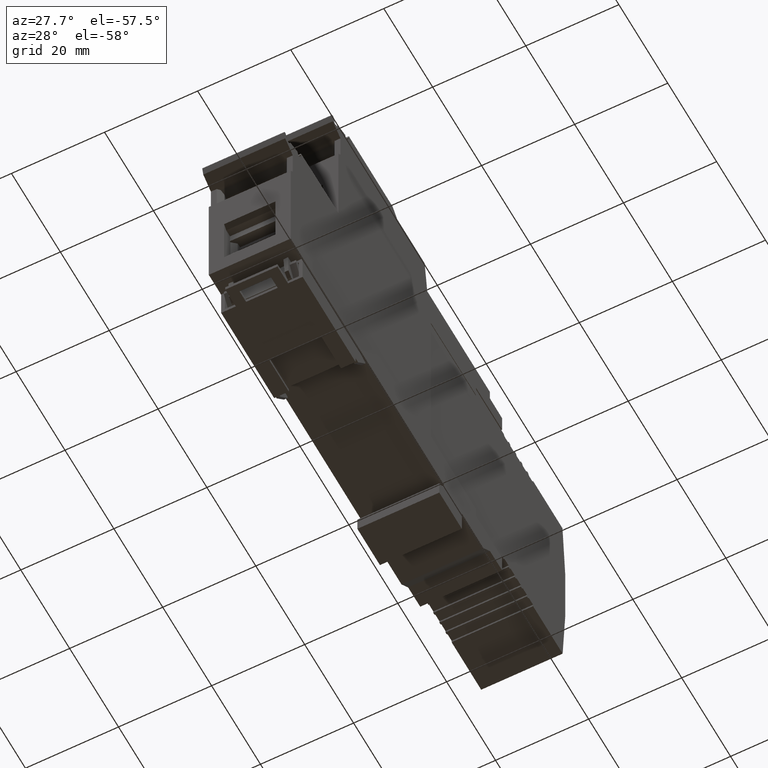
[diagram: clean part render]
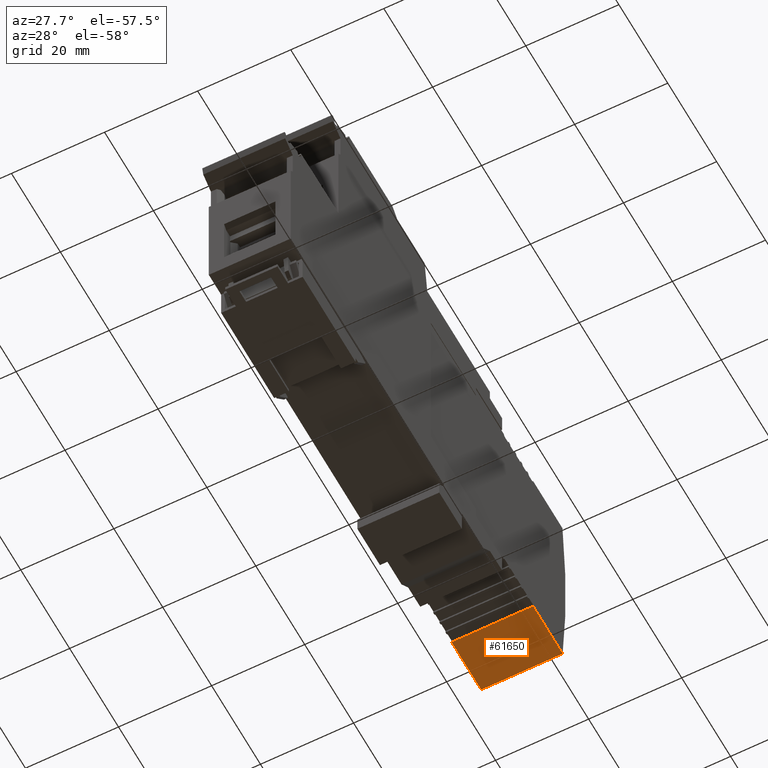
[diagram: same view with one face highlighted and labeled with its STEP entity id]
A machine part, auxiliary view. The second image highlights one B-rep face of the part: STEP entity #61650.
In plain terms, the highlighted planar face has unit normal (-0, -0, 1).
Its self-contained STEP definition (entity closure, byte-faithful):
#2360=CARTESIAN_POINT('',(21.7462375298771,102.799692134772,
17.5006430606323));
#2370=VERTEX_POINT('',#2360);
#2400=CARTESIAN_POINT('',(21.7462375298901,-0.0126563877429146,
17.5006430606323));
#2410=DIRECTION('',(-1.24299474238037E-13,1.,-8.72637840106173E-30));
#2420=VECTOR('',#2410,1.);
#2430=LINE('',#2400,#2420);
#2440=CARTESIAN_POINT('',(21.7462375298788,90.7023329973881,
17.5006430606323));
#2450=VERTEX_POINT('',#2440);
#2460=EDGE_CURVE('',#2450,#2370,#2430,.T.);
#60550=CARTESIAN_POINT('',(21.7462375298788,90.7023329973881,
54.199999999997));
#60560=DIRECTION('',(1.04216748445305E-15,8.59164801707105E-29,-1.));
#60570=VECTOR('',#60560,1.);
#60580=LINE('',#60550,#60570);
#60590=CARTESIAN_POINT('',(21.7462375298788,90.7023329973881,
0.000643060632540937));
#60600=VERTEX_POINT('',#60590);
#60610=EDGE_CURVE('',#2450,#60600,#60580,.T.);
#61420=CARTESIAN_POINT('',(21.7462375298773,102.743974331053,54.1));
#61430=DIRECTION('',(-1.,-1.24299474238037E-13,-1.04216748445305E-15));
#61440=DIRECTION('',(-1.24299474238037E-13,1.,-4.35667850212607E-29));
#61450=AXIS2_PLACEMENT_3D('',#61420,#61430,#61440);
#61460=PLANE('',#61450);
#61470=CARTESIAN_POINT('',(21.7462375298772,102.799692134772,
0.700000000000024));
#61480=DIRECTION('',(-5.52308764794106E-16,-1.78044571944912E-29,1.));
#61490=VECTOR('',#61480,1.);
#61500=LINE('',#61470,#61490);
#61510=CARTESIAN_POINT('',(21.7462375298772,102.799692134772,
0.000643060632540937));
#61520=VERTEX_POINT('',#61510);
#61530=EDGE_CURVE('',#61520,#2370,#61500,.T.);
#61540=ORIENTED_EDGE('',*,*,#61530,.T.);
#61550=CARTESIAN_POINT('',(21.7462375298901,-0.0126563877429146,
0.000643060632540937));
#61560=DIRECTION('',(1.24299474238037E-13,-1.,8.72637840106173E-30));
#61570=VECTOR('',#61560,1.);
#61580=LINE('',#61550,#61570);
#61590=EDGE_CURVE('',#61520,#60600,#61580,.T.);
#61600=ORIENTED_EDGE('',*,*,#61590,.F.);
#61610=ORIENTED_EDGE('',*,*,#60610,.T.);
#61620=ORIENTED_EDGE('',*,*,#2460,.F.);
#61630=EDGE_LOOP('',(#61620,#61610,#61600,#61540));
#61640=FACE_OUTER_BOUND('',#61630,.T.);
#61650=ADVANCED_FACE('',(#61640),#61460,.F.);